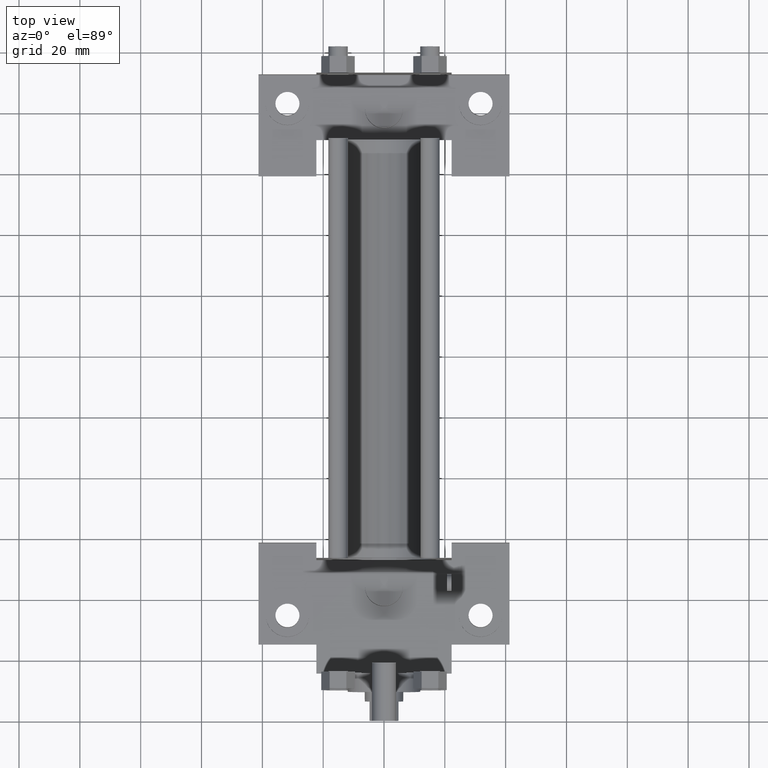
[diagram: clean part render]
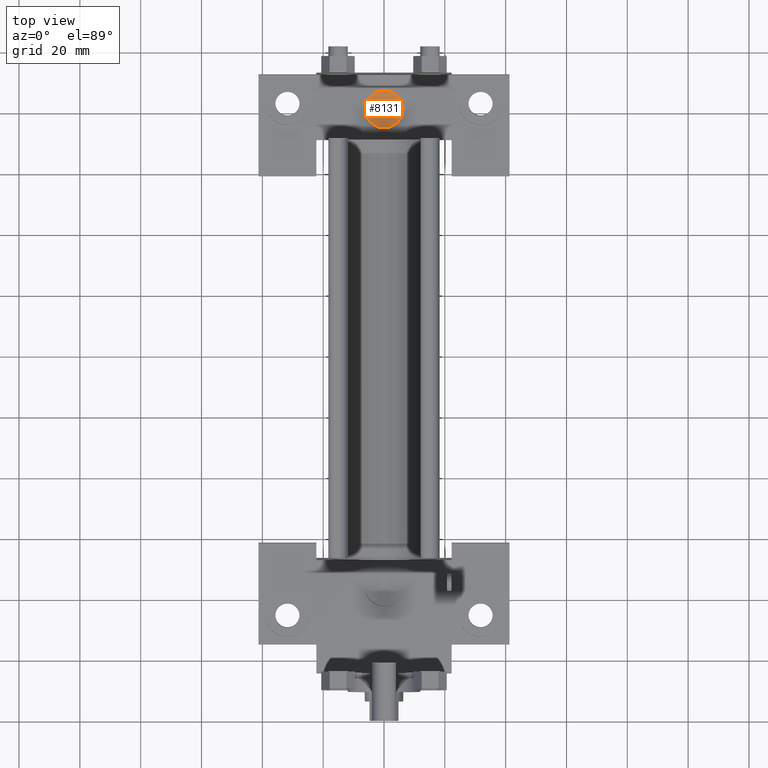
[diagram: same view with one face highlighted and labeled with its STEP entity id]
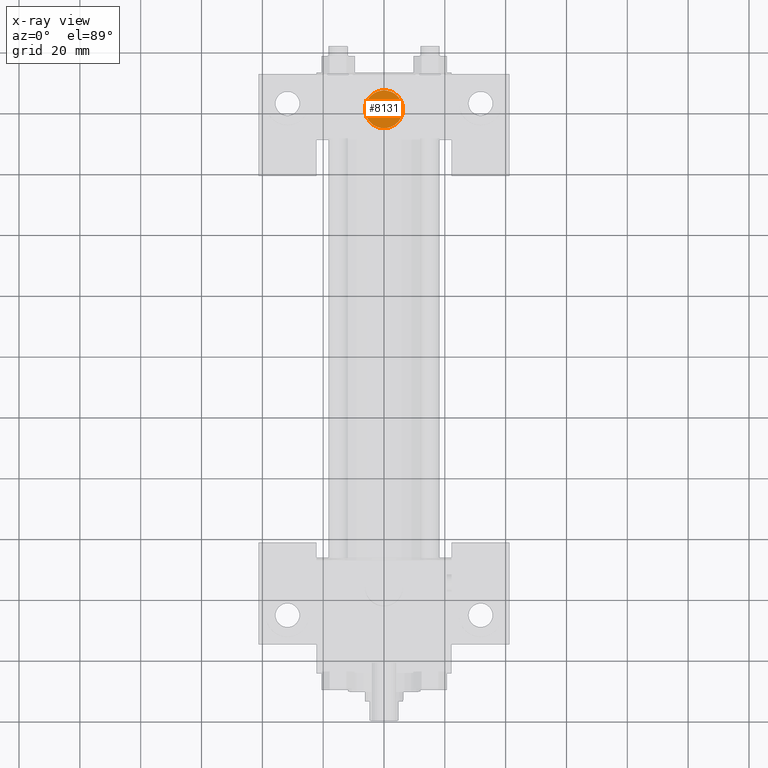
[diagram: x-ray of the same camera — body ghosted, the highlighted face saturated]
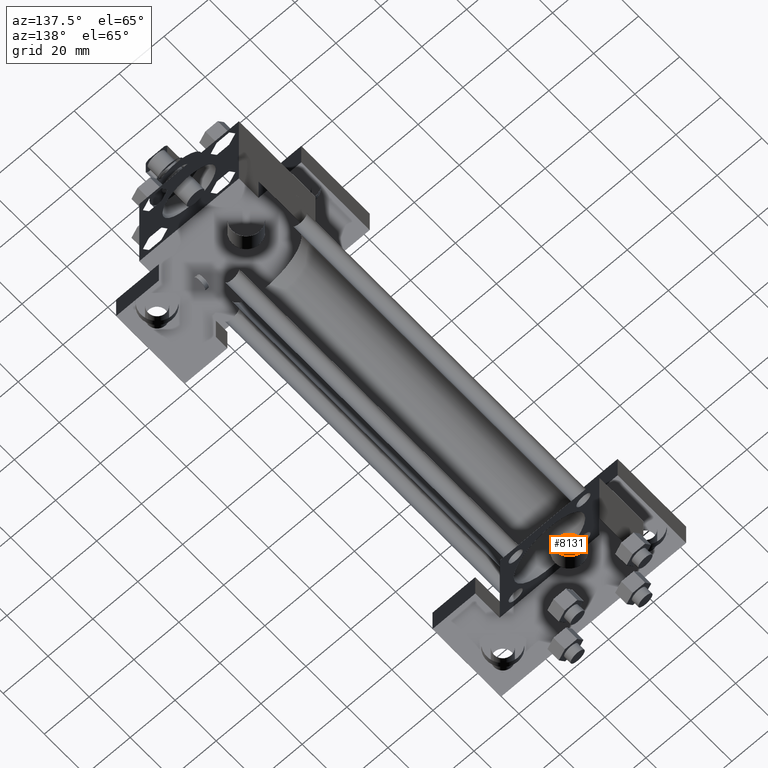
[diagram: same view with one face highlighted and labeled with its STEP entity id]
A machine part, top view. The second image highlights one B-rep face of the part: STEP entity #8131.
The next image is the same camera in x-ray: the body ghosted, the highlighted face saturated — about 0% of this face is hidden behind the body in this view.
A second angle (auxiliary view) of the same face is appended — the face is thin or edge-on in the first view.
In plain terms, the highlighted planar face has unit normal (0, 0, -1).
Its self-contained STEP definition (entity closure, byte-faithful):
#5125=EDGE_CURVE('',#5131,#5131,#5126,.T.);
#5126=CIRCLE('',#5127,6.243320000E+000);
#5127=AXIS2_PLACEMENT_3D('',#5128,#5129,#5130);
#5128=CARTESIAN_POINT('',(0.000000000E+000,2.008187500E+002,1.219200000E+001));
#5129=DIRECTION('',(0.0E+000,0.0E+000,1.0E+000));
#5130=DIRECTION('',(-1.0E+000,0.0E+000,0.0E+000));
#5131=VERTEX_POINT('',#5132);
#5132=CARTESIAN_POINT('',(-6.243320000E+000,2.008187500E+002,1.219200000E+001));
#5147=FACE_OUTER_BOUND('',#5148,.T.);
#5148=EDGE_LOOP('',(#5149));
#5149=ORIENTED_EDGE('',*,*,#5125,.T.);
#5150=PLANE('',#5151);
#5151=AXIS2_PLACEMENT_3D('',#5152,#5153,#5154);
#5152=CARTESIAN_POINT('',(0.000000000E+000,2.008187500E+002,1.219200000E+001));
#5153=DIRECTION('',(0.0E+000,0.0E+000,-1.0E+000));
#5154=DIRECTION('',(-1.0E+000,0.0E+000,0.0E+000));
#8131=ADVANCED_FACE('',(#5147),#5150,.F.);